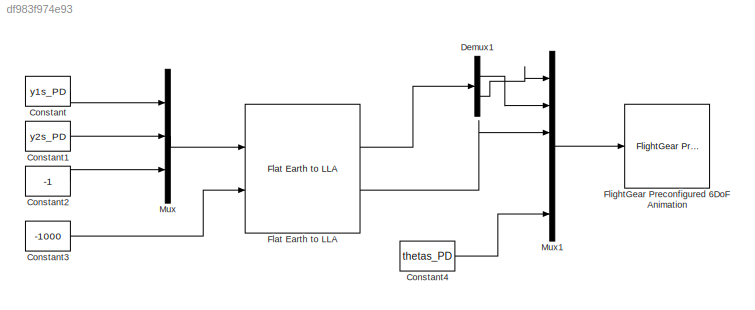
MODEL slx_df983f974e93
KIND model
CONFIG AbsTol = auto
CONFIG EnableMultiTasking = off
CONFIG FixedStep = auto
CONFIG MaxStep = auto
CONFIG MinStep = auto
CONFIG RelTol = 1e-3
CONFIG SampleTimeConstraint = Unconstrained
CONFIG SolverName = VariableStepAuto
CONFIG StartTime = 0.0
CONFIG StopTime = 10.0
BLOCK [Constant] Constant
  Value = y1s_PD
BLOCK [Constant] Constant1
  Value = y2s_PD
BLOCK [Constant] Constant2
  Value = -1
BLOCK [Constant] Constant3
  Value = -1000
BLOCK [Constant] Constant4
  Value = thetas_PD
BLOCK [Demux] Demux1
  Outputs = 2
  Ports = [1, 2]
BLOCK [Reference] Flat Earth to LLA  REF=aerolibtransform2/Flat Earth to LLA
  Ports = [2, 2]
  SourceBlock = aerolibtransform2/Flat Earth to LLA
  SourceProductBaseCode = AE
  SourceType = Flat Earth to LLA
BLOCK [Reference] FlightGear Preconfigured 6DoF Animation  REF=aerolibfltsims/FlightGear
Preconfigured
6DoF Animation
  Ports = [1]
  SourceBlock = aerolibfltsims/FlightGear\nPreconfigured\n6DoF Animation
  SourceProductBaseCode = AE
  SourceType = FlightGearQuick6DoFAnimation
BLOCK [Mux] Mux
  DisplayOption = bar
  Inputs = 3
  Ports = [3, 1]
BLOCK [Mux] Mux1
  DisplayOption = bar
  Inputs = 6
  Ports = [6, 1]
LINE Constant1:1 -> Mux:2
LINE Constant2:1 -> Mux:3
LINE Constant3:1 -> Flat Earth to LLA:2
LINE Constant4:1 -> Mux1:6
LINE Constant:1 -> Mux:1
LINE Demux1:1 -> Mux1:2
LINE Demux1:2 -> Mux1:1
LINE Flat Earth to LLA:1 -> Demux1:1
LINE Flat Earth to LLA:2 -> Mux1:3
LINE Mux1:1 -> FlightGear Preconfigured 6DoF Animation:1
LINE Mux:1 -> Flat Earth to LLA:1
